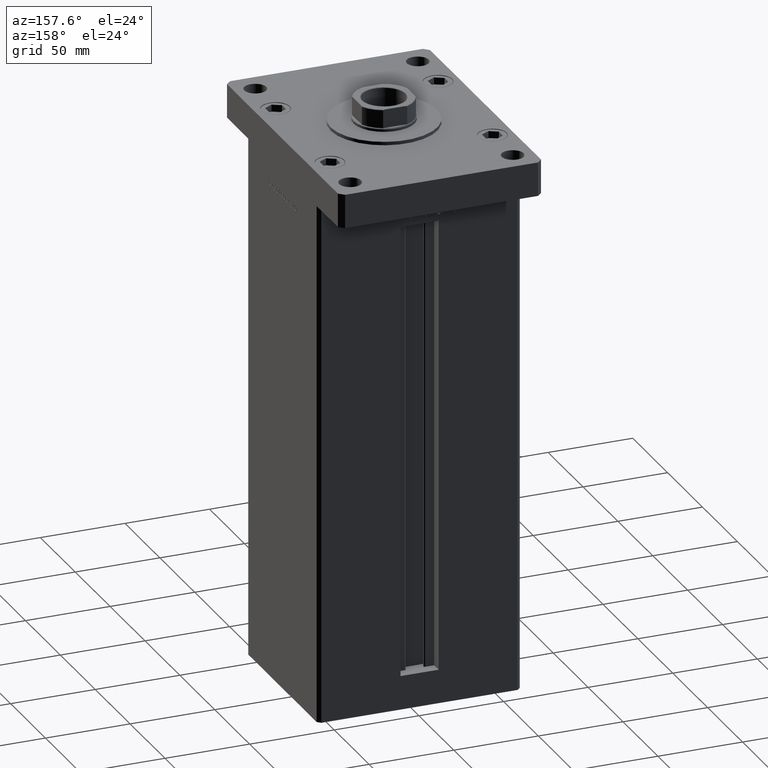
[diagram: clean part render]
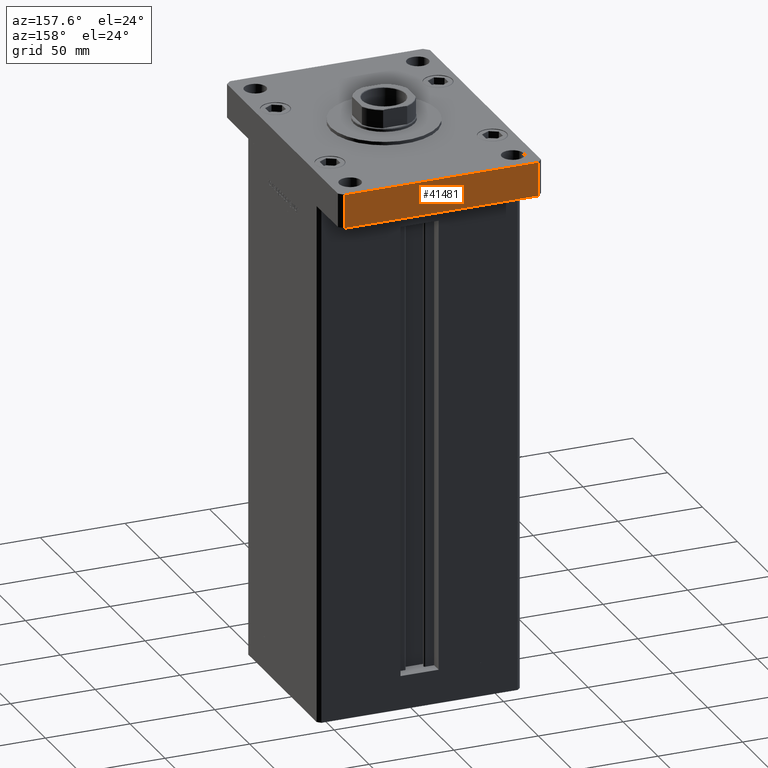
[diagram: same view with one face highlighted and labeled with its STEP entity id]
A machine part, auxiliary view. The second image highlights one B-rep face of the part: STEP entity #41481.
In plain terms, the highlighted planar face has unit normal (0, -1, 0).
Its self-contained STEP definition (entity closure, byte-faithful):
#989 = DIRECTION ( 'NONE',  ( -0.000000000000000000, -0.000000000000000000, -1.000000000000000000 ) ) ;
#1510 = DIRECTION ( 'NONE',  ( -0.000000000000000000, -0.000000000000000000, -1.000000000000000000 ) ) ;
#2118 = PLANE ( 'NONE',  #23716 ) ;
#2571 = CARTESIAN_POINT ( 'NONE',  ( 57.00000000000002132, 82.50000000000002842, 20.00000000000000000 ) ) ;
#2854 = DIRECTION ( 'NONE',  ( -1.000000000000000000, -2.434699615406043739E-16, 0.000000000000000000 ) ) ;
#6673 = ORIENTED_EDGE ( 'NONE', *, *, #41854, .T. ) ;
#7610 = CARTESIAN_POINT ( 'NONE',  ( 57.00000000000002132, 82.50000000000002842, 0.000000000000000000 ) ) ;
#8529 = VERTEX_POINT ( 'NONE', #44562 ) ;
#8846 = EDGE_CURVE ( 'NONE', #8529, #26255, #35769, .T. ) ;
#9734 = FACE_OUTER_BOUND ( 'NONE', #25776, .T. ) ;
#9864 = ORIENTED_EDGE ( 'NONE', *, *, #43454, .F. ) ;
#11346 = EDGE_CURVE ( 'NONE', #38781, #44490, #21603, .T. ) ;
#13767 = CARTESIAN_POINT ( 'NONE',  ( -57.00000000000003553, 82.50000000000000000, 20.00000000000000000 ) ) ;
#17260 = DIRECTION ( 'NONE',  ( -1.000000000000000000, -2.434699615406043739E-16, 0.000000000000000000 ) ) ;
#21603 = LINE ( 'NONE', #24886, #30651 ) ;
#23319 = DIRECTION ( 'NONE',  ( 2.434699615406043739E-16, -1.000000000000000000, 0.000000000000000000 ) ) ;
#23716 = AXIS2_PLACEMENT_3D ( 'NONE', #38845, #23319, #35849 ) ;
#24886 = CARTESIAN_POINT ( 'NONE',  ( 57.00000000000002132, 82.50000000000002842, 0.000000000000000000 ) ) ;
#25776 = EDGE_LOOP ( 'NONE', ( #51448, #9864, #27673, #6673 ) ) ;
#26255 = VERTEX_POINT ( 'NONE', #41849 ) ;
#27059 = CARTESIAN_POINT ( 'NONE',  ( 57.00000000000002132, 82.50000000000002842, 20.00000000000000000 ) ) ;
#27673 = ORIENTED_EDGE ( 'NONE', *, *, #8846, .F. ) ;
#29795 = VECTOR ( 'NONE', #1510, 1000.000000000000000 ) ;
#30651 = VECTOR ( 'NONE', #17260, 1000.000000000000000 ) ;
#35769 = LINE ( 'NONE', #2571, #44496 ) ;
#35849 = DIRECTION ( 'NONE',  ( 1.000000000000000000, 2.434699615406043739E-16, 0.000000000000000000 ) ) ;
#37648 = VECTOR ( 'NONE', #989, 1000.000000000000000 ) ;
#38781 = VERTEX_POINT ( 'NONE', #7610 ) ;
#38845 = CARTESIAN_POINT ( 'NONE',  ( 57.00000000000002132, 82.50000000000002842, 20.00000000000000000 ) ) ;
#41481 = ADVANCED_FACE ( 'NONE', ( #9734 ), #2118, .F. ) ;
#41849 = CARTESIAN_POINT ( 'NONE',  ( -57.00000000000003553, 82.50000000000000000, 20.00000000000000000 ) ) ;
#41854 = EDGE_CURVE ( 'NONE', #8529, #38781, #48063, .T. ) ;
#43454 = EDGE_CURVE ( 'NONE', #26255, #44490, #51081, .T. ) ;
#44490 = VERTEX_POINT ( 'NONE', #49010 ) ;
#44496 = VECTOR ( 'NONE', #2854, 1000.000000000000000 ) ;
#44562 = CARTESIAN_POINT ( 'NONE',  ( 57.00000000000002132, 82.50000000000002842, 20.00000000000000000 ) ) ;
#48063 = LINE ( 'NONE', #27059, #29795 ) ;
#49010 = CARTESIAN_POINT ( 'NONE',  ( -57.00000000000003553, 82.50000000000000000, 0.000000000000000000 ) ) ;
#51081 = LINE ( 'NONE', #13767, #37648 ) ;
#51448 = ORIENTED_EDGE ( 'NONE', *, *, #11346, .T. ) ;